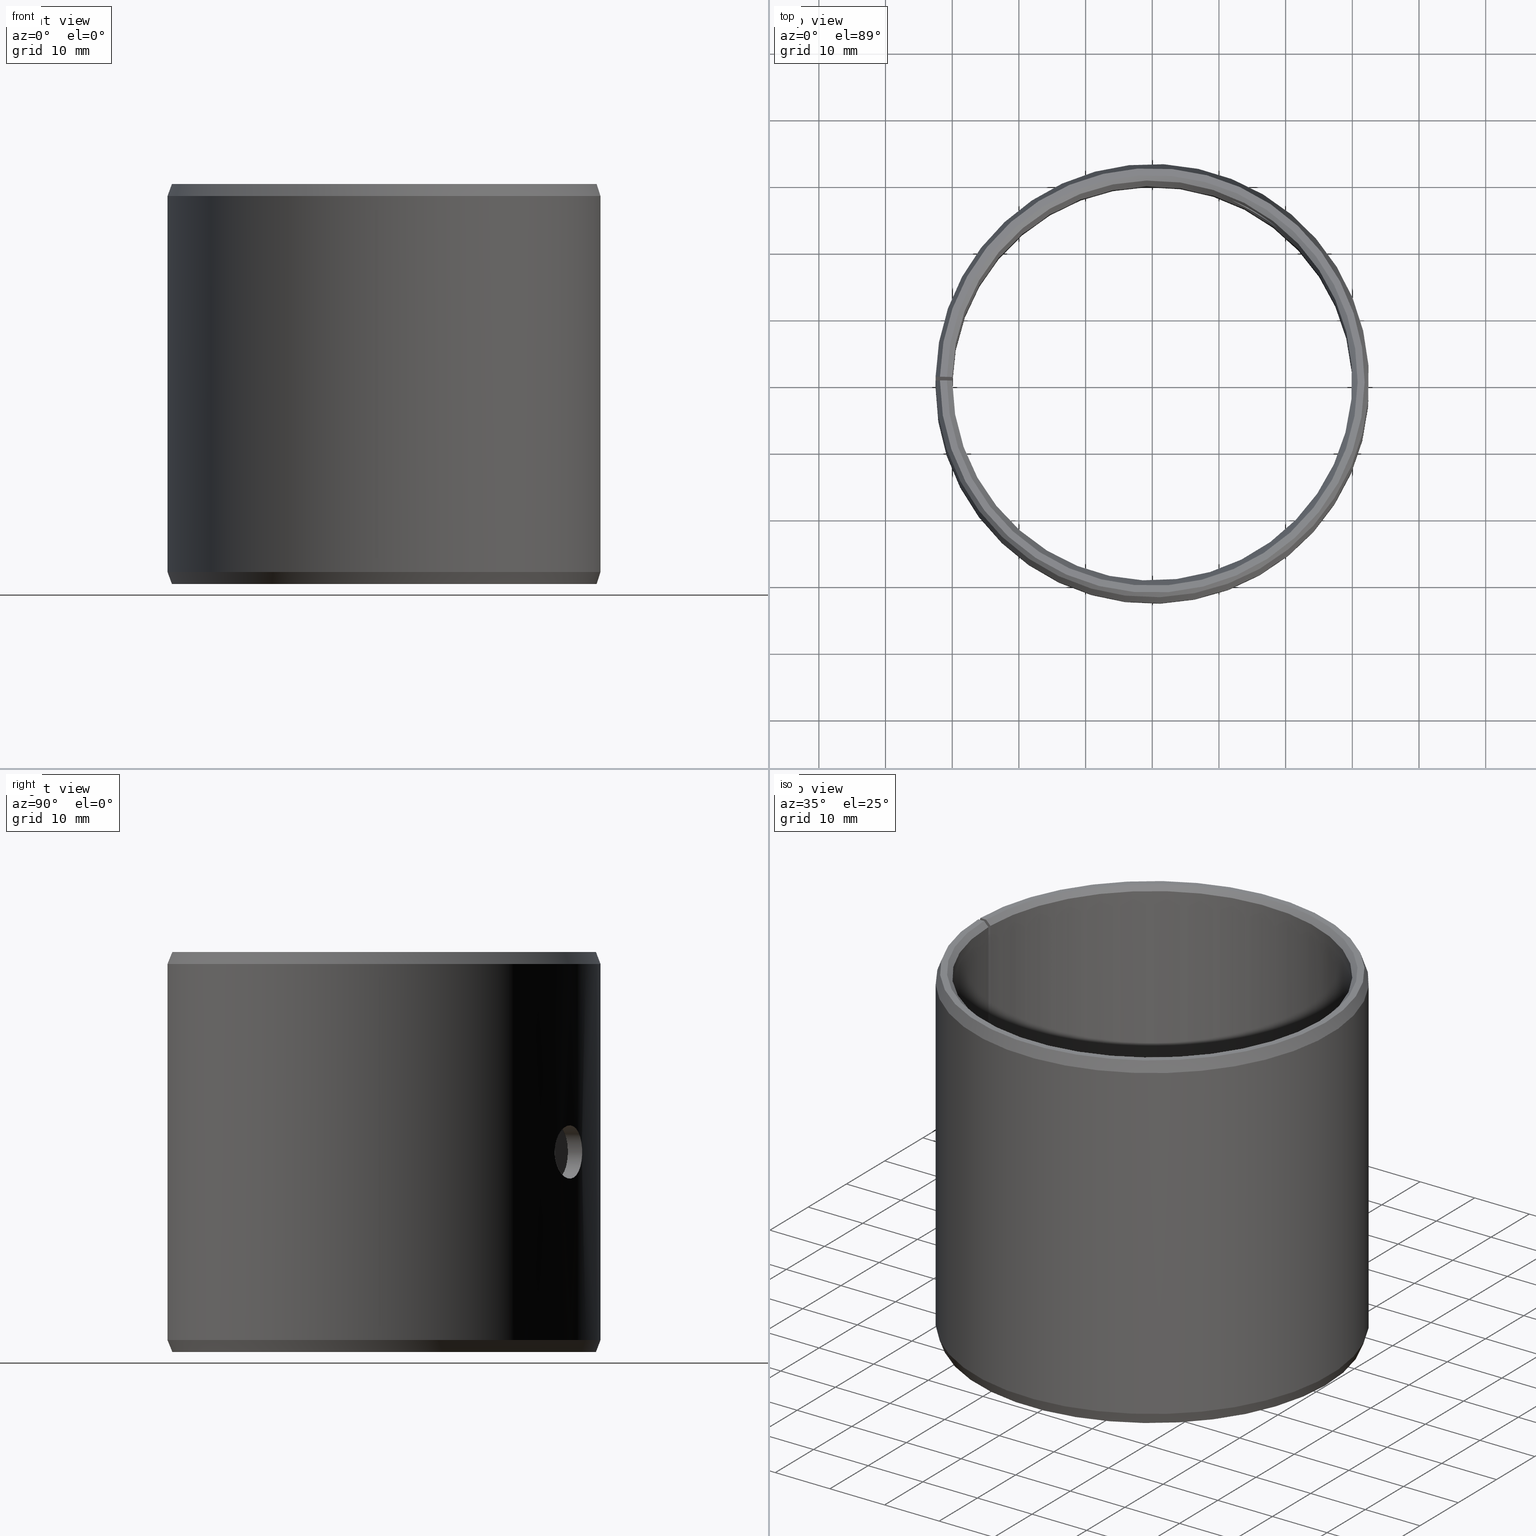
[diagram: canonical four-view strip — front | top / right | iso, engineering-drawing reading convention]
A machine part, canonical four-view strip (front | top / right | iso — engineering-drawing reading convention). The complete STEP part file that produces these views, byte-faithful:
ISO-10303-21;
HEADER;
FILE_DESCRIPTION(('STEP AP203'),'1');
FILE_NAME('440-POM6060LMB.stp','2016-09-21T05:30:47',(' '),(' '),'Spatial InterOp 3D',' ',' ');
FILE_SCHEMA(('CONFIG_CONTROL_DESIGN'));
ENDSEC;
DATA;
#1=DESIGN_CONTEXT('',#51,'design');
#2=APPLICATION_PROTOCOL_DEFINITION('INTERNATIONAL STANDARD','config_control_design',1994,#51);
#3=PRODUCT_CATEGORY_RELATIONSHIP('NONE','NONE',#52,#53);
#4=DATE_AND_TIME(#54,#55);
#5=DATE_TIME_ROLE('creation_date');
#6=DATE_TIME_ROLE('classification_date');
#7=PERSON_AND_ORGANIZATION_ROLE('creator');
#8=PERSON_AND_ORGANIZATION_ROLE('design_supplier');
#9=PERSON_AND_ORGANIZATION_ROLE('classification_officer');
#10=PERSON_AND_ORGANIZATION_ROLE('design_owner');
#11=APPROVAL_PERSON_ORGANIZATION(#56,#57,#58);
#12=APPROVAL_DATE_TIME(#4,#57);
#13=CC_DESIGN_APPROVAL(#57,(#59,#60,#61));
#14=CC_DESIGN_DATE_AND_TIME_ASSIGNMENT(#4,#5,(#61));
#15=CC_DESIGN_DATE_AND_TIME_ASSIGNMENT(#4,#6,(#59));
#16=CC_DESIGN_PERSON_AND_ORGANIZATION_ASSIGNMENT(#56,#10,(#62));
#17=CC_DESIGN_PERSON_AND_ORGANIZATION_ASSIGNMENT(#56,#7,(#61));
#18=CC_DESIGN_PERSON_AND_ORGANIZATION_ASSIGNMENT(#56,#7,(#60));
#19=CC_DESIGN_PERSON_AND_ORGANIZATION_ASSIGNMENT(#56,#8,(#60));
#20=CC_DESIGN_SECURITY_CLASSIFICATION(#59,(#60));
#21=CC_DESIGN_PERSON_AND_ORGANIZATION_ASSIGNMENT(#56,#9,(#59));
#22=SHAPE_DEFINITION_REPRESENTATION(#63,#64);
#23=DESIGN_CONTEXT('',#65,'design');
#24=APPLICATION_PROTOCOL_DEFINITION('INTERNATIONAL STANDARD','config_control_design',1994,#65);
#25=PRODUCT_CATEGORY_RELATIONSHIP('NONE','NONE',#66,#67);
#26=DATE_AND_TIME(#68,#69);
#27=DATE_TIME_ROLE('creation_date');
#28=DATE_TIME_ROLE('classification_date');
#29=PERSON_AND_ORGANIZATION_ROLE('creator');
#30=PERSON_AND_ORGANIZATION_ROLE('design_supplier');
#31=PERSON_AND_ORGANIZATION_ROLE('classification_officer');
#32=PERSON_AND_ORGANIZATION_ROLE('design_owner');
#33=APPROVAL_PERSON_ORGANIZATION(#70,#71,#72);
#34=APPROVAL_DATE_TIME(#26,#71);
#35=CC_DESIGN_APPROVAL(#71,(#73,#74,#75));
#36=CC_DESIGN_DATE_AND_TIME_ASSIGNMENT(#26,#27,(#75));
#37=CC_DESIGN_DATE_AND_TIME_ASSIGNMENT(#26,#28,(#73));
#38=CC_DESIGN_PERSON_AND_ORGANIZATION_ASSIGNMENT(#70,#32,(#76));
#39=CC_DESIGN_PERSON_AND_ORGANIZATION_ASSIGNMENT(#70,#29,(#75));
#40=CC_DESIGN_PERSON_AND_ORGANIZATION_ASSIGNMENT(#70,#29,(#74));
#41=CC_DESIGN_PERSON_AND_ORGANIZATION_ASSIGNMENT(#70,#30,(#74));
#42=CC_DESIGN_SECURITY_CLASSIFICATION(#73,(#74));
#43=CC_DESIGN_PERSON_AND_ORGANIZATION_ASSIGNMENT(#70,#31,(#73));
#44=CONTEXT_DEPENDENT_SHAPE_REPRESENTATION(#77,#78);
#45=SHAPE_DEFINITION_REPRESENTATION(#79,#80);
#46=SHAPE_REPRESENTATION_RELATIONSHIP('NONE','NONE',#80,#81);
#47= (GEOMETRIC_REPRESENTATION_CONTEXT(3)GLOBAL_UNCERTAINTY_ASSIGNED_CONTEXT((#84))GLOBAL_UNIT_ASSIGNED_CONTEXT((#86,#87,#88))REPRESENTATION_CONTEXT('NONE','WORKSPACE'));
#51=APPLICATION_CONTEXT('CONFIGURATION CONTROLLED 3D DESIGNS OF MECHANICAL PARTS AND ASSEMBLIES');
#52=PRODUCT_CATEGORY('part','NONE');
#53=PRODUCT_RELATED_PRODUCT_CATEGORY('detail',' ',(#62));
#54=CALENDAR_DATE(2016,21,8);
#55=LOCAL_TIME(7,30,47.0,#90);
#56=PERSON_AND_ORGANIZATION(#91,#92);
#57=APPROVAL(#93,'SOLID MODEL');
#58=APPROVAL_ROLE('APPROVED');
#59=SECURITY_CLASSIFICATION('','',#94);
#60=PRODUCT_DEFINITION_FORMATION_WITH_SPECIFIED_SOURCE(' ','NONE',#62,.NOT_KNOWN.);
#61=PRODUCT_DEFINITION('NONE','NONE',#60,#1);
#62=PRODUCT('','','PART--DESC',(#95));
#63=PRODUCT_DEFINITION_SHAPE('NONE','NONE',#61);
#64=SHAPE_REPRESENTATION('',(#96,#97),#98);
#65=APPLICATION_CONTEXT('CONFIGURATION CONTROLLED 3D DESIGNS OF MECHANICAL PARTS AND ASSEMBLIES');
#66=PRODUCT_CATEGORY('part','NONE');
#67=PRODUCT_RELATED_PRODUCT_CATEGORY('detail',' ',(#76));
#68=CALENDAR_DATE(2016,21,8);
#69=LOCAL_TIME(7,30,47.0,#99);
#70=PERSON_AND_ORGANIZATION(#100,#101);
#71=APPROVAL(#102,'SOLID MODEL');
#72=APPROVAL_ROLE('APPROVED');
#73=SECURITY_CLASSIFICATION('','',#103);
#74=PRODUCT_DEFINITION_FORMATION_WITH_SPECIFIED_SOURCE(' ','NONE',#76,.NOT_KNOWN.);
#75=PRODUCT_DEFINITION('440-POM6060LMB','440-POM6060LMB',#74,#23);
#76=PRODUCT('440-POM6060LMB','440-POM6060LMB','PART-440-POM6060LMB-DESC',(#104));
#77=(REPRESENTATION_RELATIONSHIP('','',#80,#64)REPRESENTATION_RELATIONSHIP_WITH_TRANSFORMATION(#107)SHAPE_REPRESENTATION_RELATIONSHIP());
#78=PRODUCT_DEFINITION_SHAPE('NAUO-PROD-DEF','NAUO-PROD-DEF',#109);
#79=PRODUCT_DEFINITION_SHAPE('NONE','NONE',#75);
#80=SHAPE_REPRESENTATION('440-POM6060LMB',(#96),#98);
#81=ADVANCED_BREP_SHAPE_REPRESENTATION('',(#110),#47);
#84=UNCERTAINTY_MEASURE_WITH_UNIT(LENGTH_MEASURE(1.0E-006),#86,'','');
#86= (CONVERSION_BASED_UNIT('METRE',#113)LENGTH_UNIT()NAMED_UNIT(#116));
#87= (NAMED_UNIT(#118)PLANE_ANGLE_UNIT()SI_UNIT($,.RADIAN.));
#88= (NAMED_UNIT(#118)SOLID_ANGLE_UNIT()SI_UNIT($,.STERADIAN.));
#90=COORDINATED_UNIVERSAL_TIME_OFFSET(1,0,.AHEAD.);
#91=PERSON('','UNSPECIFIED',$,$,$,$);
#92=ORGANIZATION('UNSPECIFIED','UNSPECIFIED','UNSPECIFIED');
#93=APPROVAL_STATUS('approved');
#94=SECURITY_CLASSIFICATION_LEVEL('unclassified');
#95=MECHANICAL_CONTEXT('',#51,'mechanical');
#96=AXIS2_PLACEMENT_3D('',#124,#125,#126);
#97=AXIS2_PLACEMENT_3D('',#127,#128,#129);
#98= (GEOMETRIC_REPRESENTATION_CONTEXT(3)GLOBAL_UNCERTAINTY_ASSIGNED_CONTEXT((#132))GLOBAL_UNIT_ASSIGNED_CONTEXT((#134,#135,#136))REPRESENTATION_CONTEXT('NONE','WORKSPACE'));
#99=COORDINATED_UNIVERSAL_TIME_OFFSET(1,0,.AHEAD.);
#100=PERSON('','UNSPECIFIED',$,$,$,$);
#101=ORGANIZATION('UNSPECIFIED','UNSPECIFIED','UNSPECIFIED');
#102=APPROVAL_STATUS('approved');
#103=SECURITY_CLASSIFICATION_LEVEL('unclassified');
#104=MECHANICAL_CONTEXT('',#65,'mechanical');
#107=ITEM_DEFINED_TRANSFORMATION('','',#96,#97);
#109=NEXT_ASSEMBLY_USAGE_OCCURRENCE('440-POM6060LMB','440-POM6060LMB','440-POM6060LMB',#61,#75,$);
#110=MANIFOLD_SOLID_BREP('',#138);
#113=LENGTH_MEASURE_WITH_UNIT(LENGTH_MEASURE(1.0),#139);
#116=DIMENSIONAL_EXPONENTS(1.0,0.0,0.0,0.0,0.0,0.0,0.0);
#118=DIMENSIONAL_EXPONENTS(0.0,0.0,0.0,0.0,0.0,0.0,0.0);
#124=CARTESIAN_POINT('',(0.0,0.0,0.0));
#125=DIRECTION('',(0.0,0.0,1.0));
#126=DIRECTION('',(1.0,0.0,0.0));
#127=CARTESIAN_POINT('',(0.0,0.0,0.0));
#128=DIRECTION('',(5.48707263966374E-016,-5.48707263966376E-016,1.0));
#129=DIRECTION('',(1.39349996950756E-015,1.0,5.48707263966375E-016));
#132=UNCERTAINTY_MEASURE_WITH_UNIT(LENGTH_MEASURE(1.0E-006),#134,'','');
#134= (CONVERSION_BASED_UNIT('METRE',#142)LENGTH_UNIT()NAMED_UNIT(#145));
#135= (NAMED_UNIT(#147)PLANE_ANGLE_UNIT()SI_UNIT($,.RADIAN.));
#136= (NAMED_UNIT(#147)SOLID_ANGLE_UNIT()SI_UNIT($,.STERADIAN.));
#138=CLOSED_SHELL('',(#153,#154,#155,#156,#157,#158,#159,#160,#161,#162,#163));
#139= (NAMED_UNIT(#116)LENGTH_UNIT()SI_UNIT($,.METRE.));
#142=LENGTH_MEASURE_WITH_UNIT(LENGTH_MEASURE(1.0),#165);
#145=DIMENSIONAL_EXPONENTS(1.0,0.0,0.0,0.0,0.0,0.0,0.0);
#147=DIMENSIONAL_EXPONENTS(0.0,0.0,0.0,0.0,0.0,0.0,0.0);
#153=ADVANCED_FACE('',(#166),#167,.F.);
#154=ADVANCED_FACE('',(#168),#169,.T.);
#155=ADVANCED_FACE('',(#170),#171,.T.);
#156=ADVANCED_FACE('',(#172),#173,.T.);
#157=ADVANCED_FACE('',(#174),#175,.T.);
#158=ADVANCED_FACE('',(#176),#177,.F.);
#159=ADVANCED_FACE('',(#178),#179,.T.);
#160=ADVANCED_FACE('',(#180),#181,.F.);
#161=ADVANCED_FACE('',(#182,#183),#184,.F.);
#162=ADVANCED_FACE('',(#185,#186),#187,.T.);
#163=ADVANCED_FACE('',(#188,#189),#190,.F.);
#165= (NAMED_UNIT(#145)LENGTH_UNIT()SI_UNIT($,.METRE.));
#166=FACE_OUTER_BOUND('',#192,.T.);
#167=CONICAL_SURFACE('',#193,0.03,0.785398163397448);
#168=FACE_OUTER_BOUND('',#194,.T.);
#169=PLANE('',#195);
#170=FACE_OUTER_BOUND('',#196,.T.);
#171=CONICAL_SURFACE('',#197,0.0318448535783208,0.34906585039887);
#172=FACE_OUTER_BOUND('',#198,.T.);
#173=CONICAL_SURFACE('',#199,0.0325,0.349065850398856);
#174=FACE_OUTER_BOUND('',#200,.T.);
#175=PLANE('',#201);
#176=FACE_OUTER_BOUND('',#202,.T.);
#177=CONICAL_SURFACE('',#203,0.0308,0.785398163397448);
#178=FACE_OUTER_BOUND('',#204,.T.);
#179=PLANE('',#205);
#180=FACE_OUTER_BOUND('',#206,.T.);
#181=PLANE('',#207);
#182=FACE_OUTER_BOUND('',#208,.T.);
#183=FACE_BOUND('',#209,.T.);
#184=CYLINDRICAL_SURFACE('',#210,0.03);
#185=FACE_OUTER_BOUND('',#211,.T.);
#186=FACE_BOUND('',#212,.T.);
#187=CYLINDRICAL_SURFACE('',#213,0.0325);
#188=FACE_OUTER_BOUND('',#214,.T.);
#189=FACE_OUTER_BOUND('',#215,.T.);
#190=CYLINDRICAL_SURFACE('',#216,0.004);
#192=EDGE_LOOP('',(#217,#218,#219,#220));
#193=AXIS2_PLACEMENT_3D('',#221,#222,#223);
#194=EDGE_LOOP('',(#224,#225,#226,#227));
#195=AXIS2_PLACEMENT_3D('',#228,#229,#230);
#196=EDGE_LOOP('',(#231,#232,#233,#234));
#197=AXIS2_PLACEMENT_3D('',#235,#236,#237);
#198=EDGE_LOOP('',(#238,#239,#240,#241));
#199=AXIS2_PLACEMENT_3D('',#242,#243,#244);
#200=EDGE_LOOP('',(#245,#246,#247,#248));
#201=AXIS2_PLACEMENT_3D('',#249,#250,#251);
#202=EDGE_LOOP('',(#252,#253,#254,#255));
#203=AXIS2_PLACEMENT_3D('',#256,#257,#258);
#204=EDGE_LOOP('',(#259,#260,#261,#262,#263,#264,#265,#266));
#205=AXIS2_PLACEMENT_3D('',#267,#268,#269);
#206=EDGE_LOOP('',(#270,#271,#272,#273,#274,#275,#276,#277));
#207=AXIS2_PLACEMENT_3D('',#278,#279,#280);
#208=EDGE_LOOP('',(#281,#282,#283,#284));
#209=EDGE_LOOP('',(#285));
#210=AXIS2_PLACEMENT_3D('',#286,#287,#288);
#211=EDGE_LOOP('',(#289,#290,#291,#292));
#212=EDGE_LOOP('',(#293));
#213=AXIS2_PLACEMENT_3D('',#294,#295,#296);
#214=EDGE_LOOP('',(#297));
#215=EDGE_LOOP('',(#298));
#216=AXIS2_PLACEMENT_3D('',#299,#300,#301);
#217=ORIENTED_EDGE('',*,*,#302,.T.);
#218=ORIENTED_EDGE('',*,*,#303,.F.);
#219=ORIENTED_EDGE('',*,*,#304,.F.);
#220=ORIENTED_EDGE('',*,*,#305,.T.);
#221=CARTESIAN_POINT('',(-6.93889390390723E-018,-6.93889390390723E-018,0.0008));
#222=DIRECTION('',(6.12323399573677E-017,-0.0,-1.0));
#223=DIRECTION('',(-1.0,0.0,-6.12323399573677E-017));
#224=ORIENTED_EDGE('',*,*,#306,.T.);
#225=ORIENTED_EDGE('',*,*,#307,.F.);
#226=ORIENTED_EDGE('',*,*,#302,.F.);
#227=ORIENTED_EDGE('',*,*,#308,.T.);
#228=CARTESIAN_POINT('',(0.000537534118268327,0.0307953090108169,-2.12956367557848E-020));
#229=DIRECTION('',(6.12323399573677E-017,0.0,-1.0));
#230=DIRECTION('',(-1.0,0.0,-6.12323399573677E-017));
#231=ORIENTED_EDGE('',*,*,#309,.T.);
#232=ORIENTED_EDGE('',*,*,#310,.F.);
#233=ORIENTED_EDGE('',*,*,#306,.F.);
#234=ORIENTED_EDGE('',*,*,#311,.T.);
#235=CARTESIAN_POINT('',(-6.93889390390723E-018,-6.93889390390723E-018,-6.01853107621011E-036));
#236=DIRECTION('',(-6.12323399573677E-017,0.0,1.0));
#237=DIRECTION('',(1.0,0.0,6.12323399573677E-017));
#238=ORIENTED_EDGE('',*,*,#312,.T.);
#239=ORIENTED_EDGE('',*,*,#313,.F.);
#240=ORIENTED_EDGE('',*,*,#314,.F.);
#241=ORIENTED_EDGE('',*,*,#315,.T.);
#242=CARTESIAN_POINT('',(-1.04083408558608E-017,-6.93889390390723E-018,0.0582));
#243=DIRECTION('',(6.12323399573677E-017,-0.0,-1.0));
#244=DIRECTION('',(-1.0,0.0,-6.12323399573677E-017));
#245=ORIENTED_EDGE('',*,*,#316,.T.);
#246=ORIENTED_EDGE('',*,*,#317,.T.);
#247=ORIENTED_EDGE('',*,*,#318,.F.);
#248=ORIENTED_EDGE('',*,*,#312,.F.);
#249=CARTESIAN_POINT('',(0.000555769327584629,0.0318400034528768,0.06));
#250=DIRECTION('',(-6.12323399573677E-017,0.0,1.0));
#251=DIRECTION('',(1.0,0.0,6.12323399573677E-017));
#252=ORIENTED_EDGE('',*,*,#319,.T.);
#253=ORIENTED_EDGE('',*,*,#320,.F.);
#254=ORIENTED_EDGE('',*,*,#317,.F.);
#255=ORIENTED_EDGE('',*,*,#321,.T.);
#256=CARTESIAN_POINT('',(-1.04083408558608E-017,-6.93889390390723E-018,0.06));
#257=DIRECTION('',(-6.12323399573677E-017,0.0,1.0));
#258=DIRECTION('',(1.0,0.0,6.12323399573677E-017));
#259=ORIENTED_EDGE('',*,*,#320,.T.);
#260=ORIENTED_EDGE('',*,*,#322,.T.);
#261=ORIENTED_EDGE('',*,*,#303,.T.);
#262=ORIENTED_EDGE('',*,*,#307,.T.);
#263=ORIENTED_EDGE('',*,*,#310,.T.);
#264=ORIENTED_EDGE('',*,*,#323,.T.);
#265=ORIENTED_EDGE('',*,*,#313,.T.);
#266=ORIENTED_EDGE('',*,*,#318,.T.);
#267=CARTESIAN_POINT('',(-6.93889390390723E-018,-0.014,0.0));
#268=DIRECTION('',(1.0,0.0,0.0));
#269=DIRECTION('',(0.0,0.0,-1.0));
#270=ORIENTED_EDGE('',*,*,#321,.F.);
#271=ORIENTED_EDGE('',*,*,#316,.F.);
#272=ORIENTED_EDGE('',*,*,#315,.F.);
#273=ORIENTED_EDGE('',*,*,#324,.F.);
#274=ORIENTED_EDGE('',*,*,#311,.F.);
#275=ORIENTED_EDGE('',*,*,#308,.F.);
#276=ORIENTED_EDGE('',*,*,#305,.F.);
#277=ORIENTED_EDGE('',*,*,#325,.F.);
#278=CARTESIAN_POINT('',(-0.000244333690121977,-0.0139978677321895,-1.49611235765866E-020));
#279=DIRECTION('',(0.999847695156391,-0.0174524064372836,-9.3259819610035E-021));
#280=DIRECTION('',(9.32598196100733E-021,1.0686516840419E-018,-1.0));
#281=ORIENTED_EDGE('',*,*,#304,.T.);
#282=ORIENTED_EDGE('',*,*,#322,.F.);
#283=ORIENTED_EDGE('',*,*,#319,.F.);
#284=ORIENTED_EDGE('',*,*,#325,.T.);
#285=ORIENTED_EDGE('',*,*,#326,.T.);
#286=CARTESIAN_POINT('',(-6.93889390390723E-018,-6.93889390390723E-018,0.0));
#287=DIRECTION('',(6.12323399573677E-017,0.0,-1.0));
#288=DIRECTION('',(-1.0,0.0,-6.12323399573677E-017));
#289=ORIENTED_EDGE('',*,*,#314,.T.);
#290=ORIENTED_EDGE('',*,*,#323,.F.);
#291=ORIENTED_EDGE('',*,*,#309,.F.);
#292=ORIENTED_EDGE('',*,*,#324,.T.);
#293=ORIENTED_EDGE('',*,*,#327,.T.);
#294=CARTESIAN_POINT('',(-6.93889390390723E-018,-6.93889390390723E-018,0.0));
#295=DIRECTION('',(6.12323399573677E-017,0.0,-1.0));
#296=DIRECTION('',(-1.0,0.0,-6.12323399573677E-017));
#297=ORIENTED_EDGE('',*,*,#326,.F.);
#298=ORIENTED_EDGE('',*,*,#327,.F.);
#299=CARTESIAN_POINT('',(0.0235721007693576,-0.0141635470599442,0.03));
#300=DIRECTION('',(0.857167300703911,-0.515038074907061,0.0));
#301=DIRECTION('',(-0.515038074907061,-0.857167300703911,0.0));
#302=EDGE_CURVE('',#328,#329,#330,.T.);
#303=EDGE_CURVE('',#331,#329,#332,.T.);
#304=EDGE_CURVE('',#333,#331,#334,.T.);
#305=EDGE_CURVE('',#333,#328,#335,.T.);
#306=EDGE_CURVE('',#336,#337,#338,.T.);
#307=EDGE_CURVE('',#329,#337,#339,.T.);
#308=EDGE_CURVE('',#328,#336,#340,.T.);
#309=EDGE_CURVE('',#341,#342,#343,.T.);
#310=EDGE_CURVE('',#337,#342,#344,.T.);
#311=EDGE_CURVE('',#336,#341,#345,.T.);
#312=EDGE_CURVE('',#346,#347,#348,.T.);
#313=EDGE_CURVE('',#349,#347,#350,.T.);
#314=EDGE_CURVE('',#351,#349,#352,.T.);
#315=EDGE_CURVE('',#351,#346,#353,.T.);
#316=EDGE_CURVE('',#346,#354,#355,.T.);
#317=EDGE_CURVE('',#354,#356,#357,.T.);
#318=EDGE_CURVE('',#347,#356,#358,.T.);
#319=EDGE_CURVE('',#359,#360,#361,.T.);
#320=EDGE_CURVE('',#356,#360,#362,.T.);
#321=EDGE_CURVE('',#354,#359,#363,.T.);
#322=EDGE_CURVE('',#360,#331,#364,.T.);
#323=EDGE_CURVE('',#342,#349,#365,.T.);
#324=EDGE_CURVE('',#341,#351,#366,.T.);
#325=EDGE_CURVE('',#359,#333,#367,.T.);
#326=EDGE_CURVE('',#368,#368,#369,.T.);
#327=EDGE_CURVE('',#370,#370,#371,.T.);
#328=VERTEX_POINT('',#372);
#329=VERTEX_POINT('',#373);
#330=CIRCLE('',#374,0.0308);
#331=VERTEX_POINT('',#375);
#332=LINE('',#376,#377);
#333=VERTEX_POINT('',#378);
#334=CIRCLE('',#379,0.03);
#335=LINE('',#380,#381);
#336=VERTEX_POINT('',#382);
#337=VERTEX_POINT('',#383);
#338=CIRCLE('',#384,0.0318448535783208);
#339=LINE('',#385,#386);
#340=LINE('',#387,#388);
#341=VERTEX_POINT('',#389);
#342=VERTEX_POINT('',#390);
#343=CIRCLE('',#391,0.0325);
#344=LINE('',#392,#393);
#345=LINE('',#394,#395);
#346=VERTEX_POINT('',#396);
#347=VERTEX_POINT('',#397);
#348=CIRCLE('',#398,0.0318448535783208);
#349=VERTEX_POINT('',#399);
#350=LINE('',#400,#401);
#351=VERTEX_POINT('',#402);
#352=CIRCLE('',#403,0.0325);
#353=LINE('',#404,#405);
#354=VERTEX_POINT('',#406);
#355=LINE('',#407,#408);
#356=VERTEX_POINT('',#409);
#357=CIRCLE('',#410,0.0308);
#358=LINE('',#411,#412);
#359=VERTEX_POINT('',#413);
#360=VERTEX_POINT('',#414);
#361=CIRCLE('',#415,0.03);
#362=LINE('',#416,#417);
#363=LINE('',#418,#419);
#364=LINE('',#420,#421);
#365=LINE('',#422,#423);
#366=LINE('',#424,#425);
#367=LINE('',#426,#427);
#368=VERTEX_POINT('',#428);
#369=B_SPLINE_CURVE_WITH_KNOTS('',3,(#429,#430,#431,#432,#433,#434,#435,#436,#437,#438,#439,#440,#441,#442,#443,#444,#445,#446,#447,#448,#449,#450,#451,#452,#453,#454,#455,#456,#457,#458,#459,#460,#461,#462,#463,#464,#465,#466,#467,#468,#469,#470,#471,#472,#473,#474,#475,#476,#477,#478,#479,#480,#481,#482,#483,#484,#485,#486,#487,#488,#489,#490,#491,#492,#493,#494),.UNSPECIFIED.,.T.,.F.,(2,2,2,2,2,2,2,2,2,2,2,2,2,2,2,2,2,2,2,2,2,2,2,2,2,2,2,2,2,2,2,2,2,2,2),(-0.000782390098521983,0.0,0.000782390098521983,0.00156478019704397,0.00234717029556595,0.00312956039408793,0.00391195049260992,0.0046943405911319,0.00547673068965388,0.00625912078817587,0.00704151088669785,0.00782390098521983,0.00860629108374182,0.0093886811822638,0.0101710712807858,0.0109534613793078,0.0117358514778298,0.0125182415763517,0.0133006316748737,0.0140830217733957,0.0148654118719177,0.0156478019704397,0.0164301920689616,0.0172125821674836,0.0179949722660056,0.0187773623645276,0.0195597524630496,0.0203421425615716,0.0211245326600936,0.0219069227586155,0.0226893128571375,0.0234717029556595,0.0242540930541815,0.0250364831527035,0.0258188732512254),.UNSPECIFIED.);
#370=VERTEX_POINT('',#495);
#371=B_SPLINE_CURVE_WITH_KNOTS('',3,(#496,#497,#498,#499,#500,#501,#502,#503,#504,#505,#506,#507,#508,#509,#510,#511,#512,#513,#514,#515,#516,#517,#518,#519,#520,#521,#522,#523,#524,#525,#526,#527,#528,#529,#530,#531,#532,#533,#534,#535,#536,#537,#538,#539,#540,#541,#542,#543,#544,#545,#546,#547,#548,#549,#550,#551,#552,#553,#554,#555,#556,#557,#558,#559,#560,#561),.UNSPECIFIED.,.T.,.F.,(2,2,2,2,2,2,2,2,2,2,2,2,2,2,2,2,2,2,2,2,2,2,2,2,2,2,2,2,2,2,2,2,2,2,2),(-0.000782261485065099,0.0,0.000782261485065106,0.00156452297013021,0.00234678445519532,0.00312904594026042,0.00391130742532553,0.00469356891039063,0.00547583039545574,0.00625809188052084,0.00704035336558595,0.00782261485065106,0.00860487633571616,0.00938713782078127,0.0101693993058464,0.0109516607909115,0.0117339222759766,0.0125161837610417,0.0132984452461068,0.0140807067311719,0.014862968216237,0.0156452297013021,0.0164274911863672,0.0172097526714323,0.0179920141564974,0.0187742756415625,0.0195565371266276,0.0203387986116927,0.0211210600967578,0.0219033215818229,0.022685583066888,0.0234678445519531,0.0242501060370182,0.0250323675220833,0.0258146290071484),.UNSPECIFIED.);
#372=CARTESIAN_POINT('',(0.000537534118268327,0.0307953090108169,-7.550574538006E-020));
#373=CARTESIAN_POINT('',(-6.93889390390723E-018,0.0308,-1.0842021724855E-019));
#374=AXIS2_PLACEMENT_3D('',#562,#563,#564);
#375=CARTESIAN_POINT('',(-6.93889390390723E-018,0.03,0.0008));
#376=CARTESIAN_POINT('',(-6.93889390390723E-018,0.03,0.0008));
#377=VECTOR('',#565,1.0);
#378=CARTESIAN_POINT('',(0.0005235721931185,0.0299954308546918,0.0008));
#379=AXIS2_PLACEMENT_3D('',#566,#567,#568);
#380=CARTESIAN_POINT('',(0.0005235721931185,0.0299954308546918,0.0008));
#381=VECTOR('',#569,1.0);
#382=CARTESIAN_POINT('',(0.000555769327584632,0.0318400034528768,3.40310564045403E-020));
#383=CARTESIAN_POINT('',(-6.93889390390723E-018,0.0318448535783208,0.0));
#384=AXIS2_PLACEMENT_3D('',#570,#571,#572);
#385=CARTESIAN_POINT('',(-6.93889390390723E-018,0.0308,-1.27957659026827E-019));
#386=VECTOR('',#573,1.0);
#387=CARTESIAN_POINT('',(0.000537534118268327,0.0307953090108169,-9.50431871583364E-020));
#388=VECTOR('',#574,1.0);
#389=CARTESIAN_POINT('',(0.000567203209211709,0.0324950500925827,0.0018));
#390=CARTESIAN_POINT('',(-6.93889390390723E-018,0.0325,0.0018));
#391=AXIS2_PLACEMENT_3D('',#575,#576,#577);
#392=CARTESIAN_POINT('',(-6.93889390390723E-018,0.0318448535783208,0.0));
#393=VECTOR('',#578,1.0);
#394=CARTESIAN_POINT('',(0.000555769327584632,0.0318400034528768,3.40310564045403E-020));
#395=VECTOR('',#579,1.0);
#396=CARTESIAN_POINT('',(0.000555769327584629,0.0318400034528768,0.06));
#397=CARTESIAN_POINT('',(-1.04083408558608E-017,0.0318448535783208,0.06));
#398=AXIS2_PLACEMENT_3D('',#580,#581,#582);
#399=CARTESIAN_POINT('',(-1.04083408558608E-017,0.0325,0.0582));
#400=CARTESIAN_POINT('',(-1.04083408558608E-017,0.0325,0.0582));
#401=VECTOR('',#583,1.0);
#402=CARTESIAN_POINT('',(0.000567203209211706,0.0324950500925827,0.0582));
#403=AXIS2_PLACEMENT_3D('',#584,#585,#586);
#404=CARTESIAN_POINT('',(0.000567203209211706,0.0324950500925827,0.0582));
#405=VECTOR('',#587,1.0);
#406=CARTESIAN_POINT('',(0.000537534118268323,0.0307953090108169,0.06));
#407=CARTESIAN_POINT('',(0.000555769327584629,0.0318400034528768,0.06));
#408=VECTOR('',#588,1.0);
#409=CARTESIAN_POINT('',(-1.04083408558608E-017,0.0308,0.06));
#410=AXIS2_PLACEMENT_3D('',#589,#590,#591);
#411=CARTESIAN_POINT('',(-1.04083408558608E-017,0.0318448535783208,0.06));
#412=VECTOR('',#592,1.0);
#413=CARTESIAN_POINT('',(0.000523572193118497,0.0299954308546918,0.0592));
#414=CARTESIAN_POINT('',(-1.04083408558608E-017,0.03,0.0592));
#415=AXIS2_PLACEMENT_3D('',#593,#594,#595);
#416=CARTESIAN_POINT('',(-1.04083408558608E-017,0.0308,0.06));
#417=VECTOR('',#596,1.0);
#418=CARTESIAN_POINT('',(0.000537534118268323,0.0307953090108169,0.06));
#419=VECTOR('',#597,1.0);
#420=CARTESIAN_POINT('',(-1.04083408558608E-017,0.03,0.0592));
#421=VECTOR('',#598,1.0);
#422=CARTESIAN_POINT('',(-6.93889390390723E-018,0.0325,0.0018));
#423=VECTOR('',#599,1.0);
#424=CARTESIAN_POINT('',(0.000567203209211709,0.0324950500925827,0.0018));
#425=VECTOR('',#600,1.0);
#426=CARTESIAN_POINT('',(0.000523572193118497,0.0299954308546918,0.0592));
#427=VECTOR('',#601,1.0);
#428=CARTESIAN_POINT('',(0.0234252637408073,-0.0187418520609256,0.03));
#429=CARTESIAN_POINT('',(0.0234252637408073,-0.0187418520609256,0.0302645748852859));
#430=CARTESIAN_POINT('',(0.0234252637408073,-0.0187418520609255,0.0297354251147141));
#431=CARTESIAN_POINT('',(0.023441675296859,-0.0187213913529828,0.0294753310265025));
#432=CARTESIAN_POINT('',(0.0235056042264161,-0.0186410623320132,0.0289637194895901));
#433=CARTESIAN_POINT('',(0.0235539053651188,-0.0185801987286633,0.0287095284970621));
#434=CARTESIAN_POINT('',(0.0236787302159274,-0.0184208571490828,0.0282252724695114));
#435=CARTESIAN_POINT('',(0.0237546670196879,-0.0183231307256084,0.0279956426811471));
#436=CARTESIAN_POINT('',(0.0239319190884214,-0.0180910080854891,0.0275610598464124));
#437=CARTESIAN_POINT('',(0.0240340299107614,-0.0179554915170169,0.0273555260168131));
#438=CARTESIAN_POINT('',(0.0242537858112139,-0.0176575236993412,0.0269870140210863));
#439=CARTESIAN_POINT('',(0.0243722667898825,-0.0174940174500302,0.026821542989767));
#440=CARTESIAN_POINT('',(0.0246252613523898,-0.0171360595921486,0.0265291171512788));
#441=CARTESIAN_POINT('',(0.0247576545723658,-0.0169445145799369,0.0264050335044158));
#442=CARTESIAN_POINT('',(0.0250265766966305,-0.0165447421594279,0.0262054447097489));
#443=CARTESIAN_POINT('',(0.0251650934413509,-0.016333548290107,0.0261284944660535));
#444=CARTESIAN_POINT('',(0.0254426234726827,-0.015897787219751,0.0260256259986326));
#445=CARTESIAN_POINT('',(0.0255793313436665,-0.0156769265349765,0.026000146514808));
#446=CARTESIAN_POINT('',(0.0258484050662319,-0.0152291881958338,0.0259998547332059));
#447=CARTESIAN_POINT('',(0.025982063731016,-0.0149999419828119,0.0260258865927404));
#448=CARTESIAN_POINT('',(0.02623494019485,-0.0145531373999884,0.0261280479221072));
#449=CARTESIAN_POINT('',(0.0263550418165588,-0.0143342472120456,0.0262036335772393));
#450=CARTESIAN_POINT('',(0.0265834459954312,-0.0139060875625242,0.0264041618262039));
#451=CARTESIAN_POINT('',(0.0266910667782492,-0.0136979600093645,0.0265292786475479));
#452=CARTESIAN_POINT('',(0.0268865605771918,-0.0133101470505813,0.0268186236854051));
#453=CARTESIAN_POINT('',(0.0269758137532817,-0.0131278558330425,0.0269840855035263));
#454=CARTESIAN_POINT('',(0.0271377303123182,-0.0127897896746107,0.0273569840813073));
#455=CARTESIAN_POINT('',(0.0272079623113936,-0.012639146715068,0.0275586807765583));
#456=CARTESIAN_POINT('',(0.0273294847405076,-0.0123741871103355,0.0279915132474239));
#457=CARTESIAN_POINT('',(0.0273811763824563,-0.0122589320672613,0.0282254531047087));
#458=CARTESIAN_POINT('',(0.0274632356564205,-0.0120739770911173,0.0287095813478241));
#459=CARTESIAN_POINT('',(0.0274937944424213,-0.0120039137899558,0.0289588958276849));
#460=CARTESIAN_POINT('',(0.02753505230175,-0.0119089703105978,0.0294719929493518));
#461=CARTESIAN_POINT('',(0.0275455287149137,-0.0118846054972731,0.0297373046594878));
#462=CARTESIAN_POINT('',(0.0275456077362073,-0.0118844223441,0.0302596676856141));
#463=CARTESIAN_POINT('',(0.0275355499438901,-0.0119078191998081,0.0305194555464069));
#464=CARTESIAN_POINT('',(0.0274943758310708,-0.0120025816584437,0.0310361756177667));
#465=CARTESIAN_POINT('',(0.0274634589264332,-0.0120734626254401,0.0312884779553218));
#466=CARTESIAN_POINT('',(0.0273820499823965,-0.0122569741263217,0.0317700080112383));
#467=CARTESIAN_POINT('',(0.0273308965840549,-0.0123710810072738,0.0320029222406208));
#468=CARTESIAN_POINT('',(0.0272085100062893,-0.0126379799261784,0.0324398958450481));
#469=CARTESIAN_POINT('',(0.0271382894502184,-0.0127885681833402,0.0326411904644415));
#470=CARTESIAN_POINT('',(0.0269784929170624,-0.0131223149782266,0.0330102712667482));
#471=CARTESIAN_POINT('',(0.026887832262026,-0.0133075854288313,0.0331792444971148));
#472=CARTESIAN_POINT('',(0.0266919564192724,-0.0136962336504657,0.0334696515119467));
#473=CARTESIAN_POINT('',(0.0265863659529788,-0.0139005011718581,0.0335927310094082));
#474=CARTESIAN_POINT('',(0.0263582188703986,-0.0143284013551653,0.0337941063671537));
#475=CARTESIAN_POINT('',(0.0262359938421114,-0.0145512216770861,0.0338713056463344));
#476=CARTESIAN_POINT('',(0.0259840669337608,-0.0149964559400162,0.0339735222185292));
#477=CARTESIAN_POINT('',(0.0258530309186644,-0.0152213907843255,0.0339997640089097));
#478=CARTESIAN_POINT('',(0.0255806588823717,-0.0156748153492889,0.0340002328484764));
#479=CARTESIAN_POINT('',(0.0254437336368332,-0.0158959725265158,0.0339744923013346));
#480=CARTESIAN_POINT('',(0.0251687825099651,-0.0163278262763888,0.0338731610302094));
#481=CARTESIAN_POINT('',(0.0250292322602547,-0.0165407473109433,0.0337962932573902));
#482=CARTESIAN_POINT('',(0.0247586102067322,-0.0169431404932306,0.0335959056015705));
#483=CARTESIAN_POINT('',(0.0246277080768371,-0.0171325293198646,0.0334732378448627));
#484=CARTESIAN_POINT('',(0.0243760153778073,-0.0174887804124481,0.0331832514087161));
#485=CARTESIAN_POINT('',(0.0242549536322003,-0.0176559204455364,0.0330147145059539));
#486=CARTESIAN_POINT('',(0.024035110417578,-0.0179540460535816,0.0326465133720488));
#487=CARTESIAN_POINT('',(0.0239348720465769,-0.0180871120358375,0.0324454599075632));
#488=CARTESIAN_POINT('',(0.0237560057642673,-0.0183214058360991,0.0320083427737609));
#489=CARTESIAN_POINT('',(0.023679296669112,-0.0184201266228546,0.0317763401144907));
#490=CARTESIAN_POINT('',(0.0235550114632606,-0.0185787941081083,0.0312953397276555));
#491=CARTESIAN_POINT('',(0.0235066358798499,-0.0186397636832833,0.0310431128484346));
#492=CARTESIAN_POINT('',(0.0234416785906791,-0.0187213895159465,0.0305260965645788));
#493=CARTESIAN_POINT('',(0.0234252637408073,-0.0187418520609256,0.0302645748852859));
#494=CARTESIAN_POINT('',(0.0234252637408073,-0.0187418520609255,0.0297354251147141));
#495=CARTESIAN_POINT('',(0.0255859848011896,-0.0200401442548025,0.03));
#496=CARTESIAN_POINT('',(0.0255859848011896,-0.0200401442548025,0.0297354721054898));
#497=CARTESIAN_POINT('',(0.0255859848011896,-0.0200401442548025,0.0302645278945102));
#498=CARTESIAN_POINT('',(0.0256021542041996,-0.0200195486177481,0.0305245847293601));
#499=CARTESIAN_POINT('',(0.0256651675871214,-0.019938701047936,0.0310361376330123));
#500=CARTESIAN_POINT('',(0.0257127825915212,-0.0198774502742382,0.0312903036083483));
#501=CARTESIAN_POINT('',(0.025835932839771,-0.0197171192698755,0.0317745828464123));
#502=CARTESIAN_POINT('',(0.0259108831437867,-0.0196188027321992,0.0320042306054443));
#503=CARTESIAN_POINT('',(0.0260859783332775,-0.0193853816142911,0.0324388476480562));
#504=CARTESIAN_POINT('',(0.0261869279197239,-0.0192491309717941,0.0326444322410981));
#505=CARTESIAN_POINT('',(0.0264044057386654,-0.018949712257183,0.0330130160991055));
#506=CARTESIAN_POINT('',(0.0265217527494969,-0.0187854898891587,0.0331785029810731));
#507=CARTESIAN_POINT('',(0.0267726025073364,-0.0184262246340724,0.033470926740866));
#508=CARTESIAN_POINT('',(0.0269040528616048,-0.0182340329112422,0.0335950379196381));
#509=CARTESIAN_POINT('',(0.0271713574067989,-0.0178332653560778,0.0337946114793971));
#510=CARTESIAN_POINT('',(0.0273091883428305,-0.0176217180733891,0.0338715352239556));
#511=CARTESIAN_POINT('',(0.0275858185201429,-0.0171854395456135,0.0339743855543017));
#512=CARTESIAN_POINT('',(0.027722284285725,-0.0169644671684853,0.0339998545854076));
#513=CARTESIAN_POINT('',(0.0279913054310868,-0.0165168100005051,0.0340001441847218));
#514=CARTESIAN_POINT('',(0.0281251673706253,-0.0162877512426127,0.0339741238251621));
#515=CARTESIAN_POINT('',(0.0283789107197148,-0.0158415058163476,0.0338719832281324));
#516=CARTESIAN_POINT('',(0.0284996489304602,-0.015623022980754,0.0337964122020098));
#517=CARTESIAN_POINT('',(0.0287296640593396,-0.0151958954739147,0.0335959327653227));
#518=CARTESIAN_POINT('',(0.0288383075797661,-0.0149883002619899,0.033470796897954));
#519=CARTESIAN_POINT('',(0.0290359613296663,-0.0146017149154091,0.0331814298471914));
#520=CARTESIAN_POINT('',(0.0291263343471406,-0.0144201857836602,0.0330160492642054));
#521=CARTESIAN_POINT('',(0.0292906710707517,-0.0140833837823772,0.032643004152575));
#522=CARTESIAN_POINT('',(0.0293620752134059,-0.0139334039158355,0.0324412495575575));
#523=CARTESIAN_POINT('',(0.0294857552052583,-0.0136697273379941,0.0320083743174263));
#524=CARTESIAN_POINT('',(0.0295384412409487,-0.0135550987870036,0.0317744687372154));
#525=CARTESIAN_POINT('',(0.0296221732598352,-0.0133711280539342,0.031290252110183));
#526=CARTESIAN_POINT('',(0.029653386439366,-0.0133014789788357,0.031040935746993));
#527=CARTESIAN_POINT('',(0.0296955354261855,-0.0132071134658163,0.0305279411898444));
#528=CARTESIAN_POINT('',(0.0297062492771909,-0.0131828962633834,0.0302626582346066));
#529=CARTESIAN_POINT('',(0.0297063292940264,-0.0131827159525113,0.0297403402189154));
#530=CARTESIAN_POINT('',(0.0296960429608761,-0.013205971815659,0.0294806066624919));
#531=CARTESIAN_POINT('',(0.0296539865239828,-0.0133001406896929,0.0289640585747968));
#532=CARTESIAN_POINT('',(0.0296223951832267,-0.0133706302856379,0.028711655291805));
#533=CARTESIAN_POINT('',(0.0295393434183027,-0.0135531266149935,0.0282301328402803));
#534=CARTESIAN_POINT('',(0.0294872275255981,-0.013666562870251,0.0279973205031628));
#535=CARTESIAN_POINT('',(0.0293626306597871,-0.0139322449221166,0.0275601614663465));
#536=CARTESIAN_POINT('',(0.0292912371201917,-0.014082173626841,0.0273588247191729));
#537=CARTESIAN_POINT('',(0.0291291173482499,-0.0144145311612857,0.026989735337667));
#538=CARTESIAN_POINT('',(0.0290372757312297,-0.0145991083034058,0.0268207444240461));
#539=CARTESIAN_POINT('',(0.0288391977221823,-0.0149865946728037,0.0265302590709949));
#540=CARTESIAN_POINT('',(0.0287326235284087,-0.0151902957007496,0.0264071916961045));
#541=CARTESIAN_POINT('',(0.0285028856991856,-0.0156171138537387,0.0262058784266378));
#542=CARTESIAN_POINT('',(0.0283799622541836,-0.0158396072189694,0.0261286583441395));
#543=CARTESIAN_POINT('',(0.0281271595972714,-0.016284296343095,0.0260264624352858));
#544=CARTESIAN_POINT('',(0.0279960212555081,-0.0165088692419167,0.0260002420984294));
#545=CARTESIAN_POINT('',(0.0277235982813076,-0.0169623721254498,0.025999761206665));
#546=CARTESIAN_POINT('',(0.0275869031972688,-0.0171836627189609,0.0260255047540264));
#547=CARTESIAN_POINT('',(0.0273128803257483,-0.0176159603986226,0.0261268035923337));
#548=CARTESIAN_POINT('',(0.0271740498710487,-0.0178291842902217,0.0262036151196363));
#549=CARTESIAN_POINT('',(0.026904989878231,-0.0182326717323935,0.0264040288305014));
#550=CARTESIAN_POINT('',(0.0267750493741285,-0.0184226557927811,0.026526702746203));
#551=CARTESIAN_POINT('',(0.0265255268751932,-0.0187801474818413,0.026816627389124));
#552=CARTESIAN_POINT('',(0.0264055856724858,-0.0189480691214054,0.0269852175241674));
#553=CARTESIAN_POINT('',(0.0261879949989369,-0.0192476802776907,0.0273535282711474));
#554=CARTESIAN_POINT('',(0.0260889179092389,-0.0193814352153303,0.0275545954424497));
#555=CARTESIAN_POINT('',(0.0259122817260178,-0.0196169652197411,0.0279915761987354));
#556=CARTESIAN_POINT('',(0.0258364908114563,-0.019716385908543,0.0282238088618105));
#557=CARTESIAN_POINT('',(0.0257138741744195,-0.019876035965131,0.0287048257695671));
#558=CARTESIAN_POINT('',(0.0256662115326537,-0.0199373594035682,0.0289568500514686));
#559=CARTESIAN_POINT('',(0.0256021573499737,-0.0200195467844095,0.0294739509074179));
#560=CARTESIAN_POINT('',(0.0255859848011896,-0.0200401442548025,0.0297354721054898));
#561=CARTESIAN_POINT('',(0.0255859848011896,-0.0200401442548025,0.0302645278945102));
#562=CARTESIAN_POINT('',(-6.93889390390723E-018,-6.93889390390723E-018,-1.0842021724855E-019));
#563=DIRECTION('',(6.12323399573677E-017,0.0,-1.0));
#564=DIRECTION('',(-1.0,0.0,-6.12323399573677E-017));
#565=DIRECTION('',(0.0,0.707106781186549,-0.707106781186547));
#566=CARTESIAN_POINT('',(-6.93889390390723E-018,-6.93889390390723E-018,0.0008));
#567=DIRECTION('',(6.12323399573677E-017,0.0,-1.0));
#568=DIRECTION('',(-1.0,0.0,-6.12323399573677E-017));
#569=DIRECTION('',(0.012340714939827,0.706999085398825,-0.707106781186547));
#570=CARTESIAN_POINT('',(-6.93889390390723E-018,-6.93889390390723E-018,-6.01853107621011E-036));
#571=DIRECTION('',(6.12323399573677E-017,0.0,-1.0));
#572=DIRECTION('',(-1.0,0.0,-6.12323399573677E-017));
#573=DIRECTION('',(0.0,1.0,1.22464679914734E-016));
#574=DIRECTION('',(0.0174524064372836,0.999847695156391,1.23533331598776E-016));
#575=CARTESIAN_POINT('',(-6.93889390390723E-018,-6.93889390390723E-018,0.0018));
#576=DIRECTION('',(6.12323399573677E-017,0.0,-1.0));
#577=DIRECTION('',(-1.0,0.0,-6.12323399573677E-017));
#578=DIRECTION('',(0.0,0.342020143325672,0.939692620785907));
#579=DIRECTION('',(0.00596907455105761,0.341968052001232,0.939692620785907));
#580=CARTESIAN_POINT('',(-1.04083408558608E-017,-6.93889390390723E-018,0.06));
#581=DIRECTION('',(6.12323399573677E-017,0.0,-1.0));
#582=DIRECTION('',(-1.0,0.0,-6.12323399573677E-017));
#583=DIRECTION('',(0.0,-0.342020143325659,0.939692620785912));
#584=CARTESIAN_POINT('',(-1.04083408558608E-017,-6.93889390390723E-018,0.0582));
#585=DIRECTION('',(6.12323399573677E-017,0.0,-1.0));
#586=DIRECTION('',(-1.0,0.0,-6.12323399573677E-017));
#587=DIRECTION('',(-0.00596907455105739,-0.341968052001219,0.939692620785912));
#588=DIRECTION('',(-0.0174524064372836,-0.999847695156391,-1.0686516840419E-018));
#589=CARTESIAN_POINT('',(-1.04083408558608E-017,-6.93889390390723E-018,0.06));
#590=DIRECTION('',(6.12323399573677E-017,0.0,-1.0));
#591=DIRECTION('',(-1.0,0.0,-6.12323399573677E-017));
#592=DIRECTION('',(0.0,-1.0,0.0));
#593=CARTESIAN_POINT('',(-1.04083408558608E-017,-6.93889390390723E-018,0.0592));
#594=DIRECTION('',(6.12323399573677E-017,0.0,-1.0));
#595=DIRECTION('',(-1.0,0.0,-6.12323399573677E-017));
#596=DIRECTION('',(0.0,-0.707106781186548,-0.707106781186548));
#597=DIRECTION('',(-0.012340714939827,-0.706999085398824,-0.707106781186548));
#598=DIRECTION('',(5.94083382183838E-017,0.0,-1.0));
#599=DIRECTION('',(-6.15150168786102E-017,-4.92120135028881E-016,1.0));
#600=DIRECTION('',(-7.01036544380408E-017,-4.92040249356159E-016,1.0));
#601=DIRECTION('',(5.94086160226834E-017,3.18332196910583E-020,-1.0));
ENDSEC;
END-ISO-10303-21;
